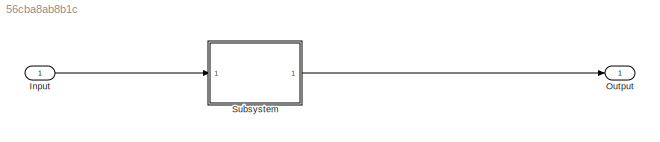
MODEL slx_56cba8ab8b1c
KIND model
CONFIG AbsTol = auto
CONFIG EnableMultiTasking = off
CONFIG FixedStep = auto
CONFIG MaxStep = auto
CONFIG MinStep = auto
CONFIG RelTol = 1e-3
CONFIG SampleTimeConstraint = Unconstrained
CONFIG Solver = VariableStepAuto
CONFIG SolverName = VariableStepAuto
CONFIG StartTime = 0.0
CONFIG StopTime = 10.0
BLOCK [Inport] Input
BLOCK [Outport] Output
BLOCK [ModelReference] Subsystem
  ModelNameDialog = Subsystem
  ModelReferenceVersion = 1.5
  Ports = [1, 1]
LINE Input:1 -> Subsystem:1
LINE Subsystem:1 -> Output:1
